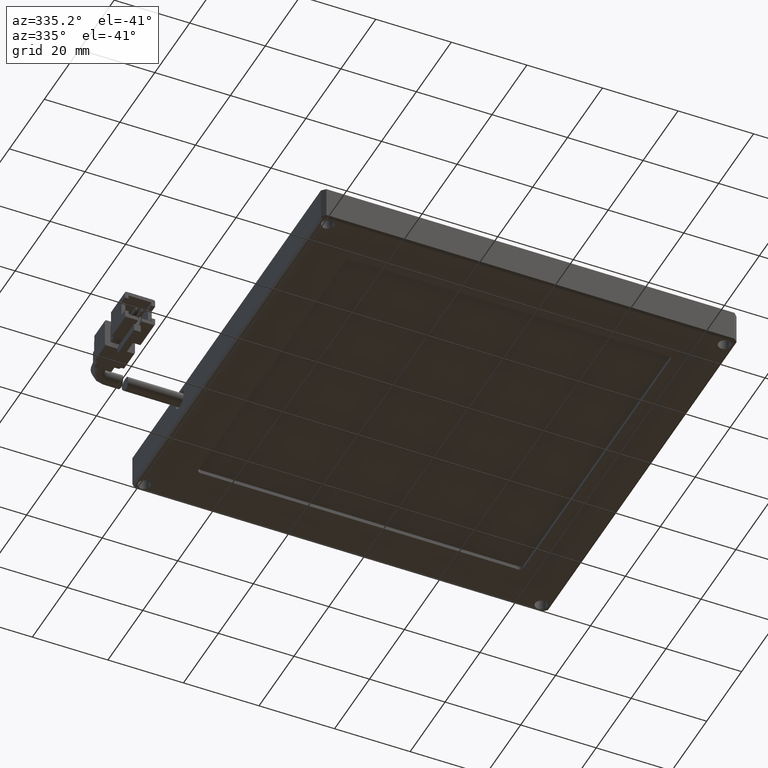
[diagram: clean part render]
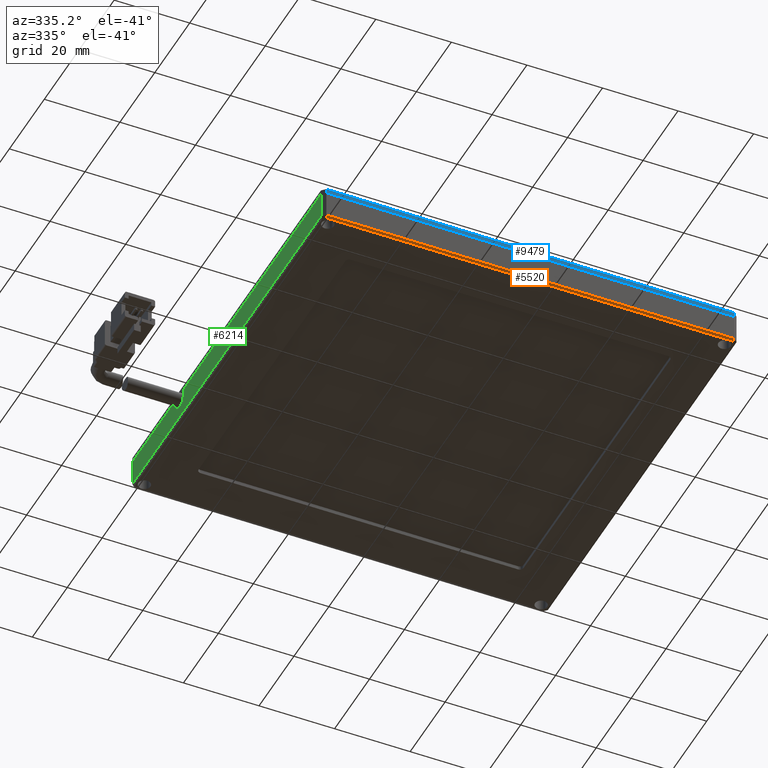
[diagram: same view with three faces highlighted in distinct colors, each labeled with its STEP entity id]
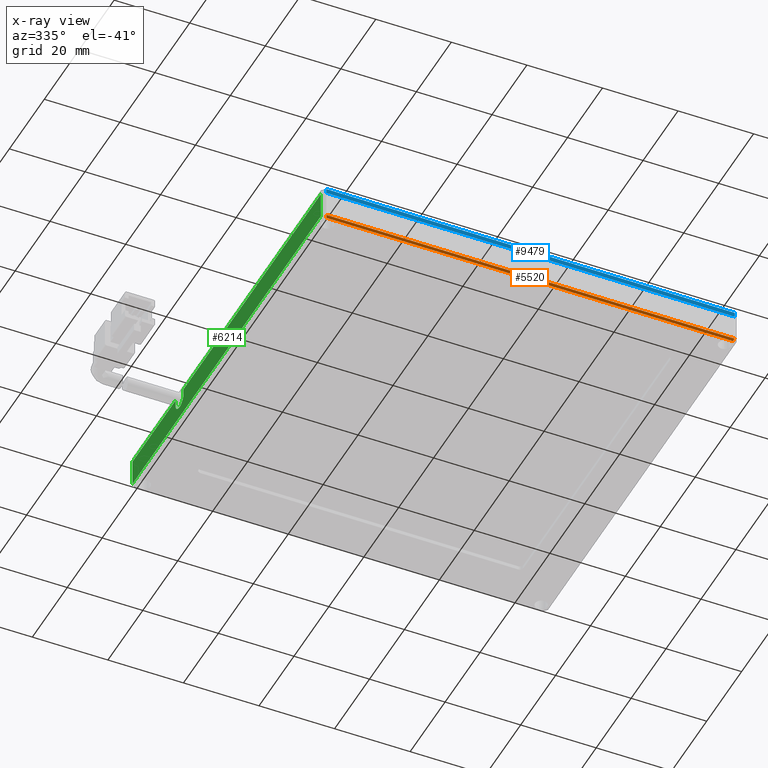
[diagram: x-ray of the same camera — body ghosted, the three highlighted faces saturated]
A machine part, auxiliary view with three faces highlighted in distinct colors.
The next image is the same camera in x-ray (body ghosted, the three faces saturated) — at least one of them is partly hidden behind the body in this view.
Their STEP definitions:

[orange] entity #5520 — the highlighted planar face has unit normal (0, -0.7071, -0.7071).
#290 = CARTESIAN_POINT ( 'NONE',  ( 48.85490645284423300, -46.59984726995021700, -7.000000000024218000 ) ) ;
#373 = VECTOR ( 'NONE', #17032, 1000.000000000000000 ) ;
#697 = EDGE_CURVE ( 'NONE', #2095, #1726, #14205, .T. ) ;
#1726 = VERTEX_POINT ( 'NONE', #11872 ) ;
#1876 = AXIS2_PLACEMENT_3D ( 'NONE', #2997, #12659, #4407 ) ;
#1892 = CARTESIAN_POINT ( 'NONE',  ( -59.14509354715928400, -46.59984726995006100, -7.000000000024730400 ) ) ;
#2067 = EDGE_CURVE ( 'NONE', #8291, #2095, #8245, .T. ) ;
#2095 = VERTEX_POINT ( 'NONE', #1892 ) ;
#2493 = FACE_OUTER_BOUND ( 'NONE', #11384, .T. ) ;
#2997 = CARTESIAN_POINT ( 'NONE',  ( -61.30509354716000600, -46.73213862594999300, -6.867708644026999200 ) ) ;
#4322 = VERTEX_POINT ( 'NONE', #6375 ) ;
#4407 = DIRECTION ( 'NONE',  ( 0.0000000000000000000, 0.7071067811897842100, -0.7071067811833107200 ) ) ;
#4466 = CARTESIAN_POINT ( 'NONE',  ( 48.64779967164000100, -46.09984726994781600, -7.500000000023391100 ) ) ;
#5191 = VECTOR ( 'NONE', #14564, 1000.000000000000000 ) ;
#5520 = ADVANCED_FACE ( 'NONE', ( #2493 ), #12605, .T. ) ;
#5591 = EDGE_CURVE ( 'NONE', #4322, #8291, #16931, .T. ) ;
#6375 = CARTESIAN_POINT ( 'NONE',  ( 48.64779967164027900, -46.09984726994930800, -7.500000000023733900 ) ) ;
#7816 = ORIENTED_EDGE ( 'NONE', *, *, #2067, .T. ) ;
#8167 = CARTESIAN_POINT ( 'NONE',  ( -5.145093547159993900, -46.59984726994998300, -7.000000000023993300 ) ) ;
#8245 = LINE ( 'NONE', #8167, #373 ) ;
#8291 = VERTEX_POINT ( 'NONE', #290 ) ;
#8849 = LINE ( 'NONE', #10360, #5191 ) ;
#9539 = ORIENTED_EDGE ( 'NONE', *, *, #697, .T. ) ;
#10360 = CARTESIAN_POINT ( 'NONE',  ( -5.145093547159997400, -46.09984726994996200, -7.500000000023999500 ) ) ;
#10576 = VECTOR ( 'NONE', #15485, 1000.000000000000100 ) ;
#11384 = EDGE_LOOP ( 'NONE', ( #15411, #7816, #9539, #14760 ) ) ;
#11872 = CARTESIAN_POINT ( 'NONE',  ( -58.93798676597328500, -46.09984726994931500, -7.500000000023733000 ) ) ;
#12605 = PLANE ( 'NONE',  #1876 ) ;
#12659 = DIRECTION ( 'NONE',  ( 0.0000000000000000000, -0.7071067811833108300, -0.7071067811897843200 ) ) ;
#12719 = CARTESIAN_POINT ( 'NONE',  ( -59.14509354716000200, -46.59984726995216400, -7.000000000023615800 ) ) ;
#12837 = DIRECTION ( 'NONE',  ( 0.2810846377306096500, -0.6785983445456829100, 0.6785983445394708800 ) ) ;
#13717 = VECTOR ( 'NONE', #12837, 1000.000000000000100 ) ;
#14205 = LINE ( 'NONE', #12719, #10576 ) ;
#14564 = DIRECTION ( 'NONE',  ( -1.000000000000000000, 0.0000000000000000000, 0.0000000000000000000 ) ) ;
#14760 = ORIENTED_EDGE ( 'NONE', *, *, #15644, .F. ) ;
#15411 = ORIENTED_EDGE ( 'NONE', *, *, #5591, .T. ) ;
#15485 = DIRECTION ( 'NONE',  ( 0.2810846377143121900, 0.6785983445490576500, -0.6785983445428468400 ) ) ;
#15644 = EDGE_CURVE ( 'NONE', #4322, #1726, #8849, .T. ) ;
#16931 = LINE ( 'NONE', #4466, #13717 ) ;
#17032 = DIRECTION ( 'NONE',  ( -1.000000000000000000, 0.0000000000000000000, 0.0000000000000000000 ) ) ;

[blue] entity #9479 — the highlighted planar face has unit normal (0, 1, 0).
#72 = DIRECTION ( 'NONE',  ( 1.000000000000000000, 0.0000000000000000000, 0.0000000000000000000 ) ) ;
#98 = DIRECTION ( 'NONE',  ( -1.000000000000000000, 0.0000000000000000000, 0.0000000000000000000 ) ) ;
#366 = VECTOR ( 'NONE', #12667, 1000.000000000000000 ) ;
#939 = VERTEX_POINT ( 'NONE', #6665 ) ;
#1221 = AXIS2_PLACEMENT_3D ( 'NONE', #15378, #7169, #16749 ) ;
#2247 = CARTESIAN_POINT ( 'NONE',  ( 48.85490645284001900, -46.59984726994997600, 0.5999999999763499000 ) ) ;
#2354 = ORIENTED_EDGE ( 'NONE', *, *, #11447, .F. ) ;
#2599 = ORIENTED_EDGE ( 'NONE', *, *, #6590, .F. ) ;
#3004 = CARTESIAN_POINT ( 'NONE',  ( -59.14509354715298900, -46.59984726994807100, 0.5999999999763500100 ) ) ;
#4088 = EDGE_LOOP ( 'NONE', ( #12406, #2354, #2599, #5749 ) ) ;
#4974 = VECTOR ( 'NONE', #72, 1000.000000000000000 ) ;
#5749 = ORIENTED_EDGE ( 'NONE', *, *, #12269, .F. ) ;
#6590 = EDGE_CURVE ( 'NONE', #939, #13472, #7108, .T. ) ;
#6665 = CARTESIAN_POINT ( 'NONE',  ( 48.85490645284051700, -46.59984726994998300, 1.199999999976435200 ) ) ;
#7108 = LINE ( 'NONE', #2247, #14401 ) ;
#7169 = DIRECTION ( 'NONE',  ( 0.0000000000000000000, 1.000000000000000000, 0.0000000000000000000 ) ) ;
#7795 = LINE ( 'NONE', #3004, #366 ) ;
#8189 = VECTOR ( 'NONE', #98, 1000.000000000000000 ) ;
#8418 = CARTESIAN_POINT ( 'NONE',  ( -5.145093547159997400, -46.59984726994998300, 1.199999999976435200 ) ) ;
#8494 = PLANE ( 'NONE',  #1221 ) ;
#9479 = ADVANCED_FACE ( 'NONE', ( #15390 ), #8494, .F. ) ;
#11251 = CARTESIAN_POINT ( 'NONE',  ( -5.145093547159997400, -46.59984726994998300, -2.364688306277999100E-011 ) ) ;
#11447 = EDGE_CURVE ( 'NONE', #13472, #14224, #15028, .T. ) ;
#11943 = DIRECTION ( 'NONE',  ( -0.0000000000000000000, -0.0000000000000000000, -1.000000000000000000 ) ) ;
#12269 = EDGE_CURVE ( 'NONE', #16408, #939, #12290, .T. ) ;
#12290 = LINE ( 'NONE', #8418, #4974 ) ;
#12406 = ORIENTED_EDGE ( 'NONE', *, *, #15233, .T. ) ;
#12667 = DIRECTION ( 'NONE',  ( -0.0000000000000000000, -0.0000000000000000000, -1.000000000000000000 ) ) ;
#13449 = CARTESIAN_POINT ( 'NONE',  ( 48.85490645284001900, -46.59984726994997600, -2.364691016783323100E-011 ) ) ;
#13472 = VERTEX_POINT ( 'NONE', #13449 ) ;
#14224 = VERTEX_POINT ( 'NONE', #15415 ) ;
#14401 = VECTOR ( 'NONE', #11943, 1000.000000000000000 ) ;
#15028 = LINE ( 'NONE', #11251, #8189 ) ;
#15233 = EDGE_CURVE ( 'NONE', #16408, #14224, #7795, .T. ) ;
#15378 = CARTESIAN_POINT ( 'NONE',  ( -61.30509354716000600, -46.59984726994998300, -0.1867602486113000300 ) ) ;
#15390 = FACE_OUTER_BOUND ( 'NONE', #4088, .T. ) ;
#15415 = CARTESIAN_POINT ( 'NONE',  ( -59.14509354715650600, -46.59984726994950700, -2.364688306277945500E-011 ) ) ;
#16408 = VERTEX_POINT ( 'NONE', #16679 ) ;
#16679 = CARTESIAN_POINT ( 'NONE',  ( -59.14509354715204400, -46.59984726994902400, 1.199999999976369300 ) ) ;
#16749 = DIRECTION ( 'NONE',  ( 0.0000000000000000000, 0.0000000000000000000, 1.000000000000000000 ) ) ;

[green] entity #6214 — the highlighted planar face has unit normal (1, 0, 0).
#387 = CIRCLE ( 'NONE', #1207, 2.250000000000383700 ) ;
#603 = ORIENTED_EDGE ( 'NONE', *, *, #1792, .F. ) ;
#734 = LINE ( 'NONE', #14102, #8152 ) ;
#934 = CARTESIAN_POINT ( 'NONE',  ( -60.14509354715998100, 33.15015273004999600, -3.500000000023749400 ) ) ;
#951 = DIRECTION ( 'NONE',  ( 0.0000000000000000000, 1.000000000000000000, 0.0000000000000000000 ) ) ;
#977 = DIRECTION ( 'NONE',  ( 0.0000000000000000000, 1.000000000000000000, 0.0000000000000000000 ) ) ;
#1125 = ORIENTED_EDGE ( 'NONE', *, *, #9069, .F. ) ;
#1164 = LINE ( 'NONE', #9222, #8144 ) ;
#1207 = AXIS2_PLACEMENT_3D ( 'NONE', #10678, #2355, #12056 ) ;
#1208 = VECTOR ( 'NONE', #9271, 1000.000000000000000 ) ;
#1616 = CARTESIAN_POINT ( 'NONE',  ( -60.14509354715689700, -45.59984726994860400, -2.369249566501570800E-011 ) ) ;
#1792 = EDGE_CURVE ( 'NONE', #14907, #17854, #387, .T. ) ;
#2131 = LINE ( 'NONE', #7909, #15981 ) ;
#2164 = EDGE_CURVE ( 'NONE', #9333, #7448, #9715, .T. ) ;
#2355 = DIRECTION ( 'NONE',  ( -1.000000000000000000, 0.0000000000000000000, 0.0000000000000000000 ) ) ;
#2649 = EDGE_CURVE ( 'NONE', #17854, #17888, #15918, .T. ) ;
#3134 = LINE ( 'NONE', #15006, #10061 ) ;
#3800 = EDGE_LOOP ( 'NONE', ( #1125, #12130, #8724, #4445, #14761, #12318, #9154, #603 ) ) ;
#4063 = CARTESIAN_POINT ( 'NONE',  ( -60.14509354715977500, -45.59984726994603900, -7.000000000021207900 ) ) ;
#4445 = ORIENTED_EDGE ( 'NONE', *, *, #15012, .F. ) ;
#4542 = VERTEX_POINT ( 'NONE', #4063 ) ;
#6214 = ADVANCED_FACE ( 'NONE', ( #12287 ), #11887, .F. ) ;
#6531 = VERTEX_POINT ( 'NONE', #1616 ) ;
#6745 = CARTESIAN_POINT ( 'NONE',  ( -60.14509354715796300, 33.15015273004903000, -2.362791162088483700E-011 ) ) ;
#7448 = VERTEX_POINT ( 'NONE', #9574 ) ;
#7622 = AXIS2_PLACEMENT_3D ( 'NONE', #17530, #9313, #977 ) ;
#7648 = CARTESIAN_POINT ( 'NONE',  ( -60.14509354715998100, -45.59984726994998300, -3.500000000023749000 ) ) ;
#7909 = CARTESIAN_POINT ( 'NONE',  ( -60.14509354715999500, 8.400152730050004700, -7.000000000023993300 ) ) ;
#8144 = VECTOR ( 'NONE', #10591, 1000.000000000000000 ) ;
#8152 = VECTOR ( 'NONE', #8663, 1000.000000000000000 ) ;
#8663 = DIRECTION ( 'NONE',  ( 0.0000000000000000000, 0.0000000000000000000, 1.000000000000000000 ) ) ;
#8724 = ORIENTED_EDGE ( 'NONE', *, *, #13720, .F. ) ;
#9069 = EDGE_CURVE ( 'NONE', #9333, #14907, #1164, .T. ) ;
#9154 = ORIENTED_EDGE ( 'NONE', *, *, #2649, .F. ) ;
#9222 = CARTESIAN_POINT ( 'NONE',  ( -60.14509354715998100, 37.65015273004998200, -3.500000000023749400 ) ) ;
#9271 = DIRECTION ( 'NONE',  ( 0.0000000000000000000, 0.0000000000000000000, 1.000000000000000000 ) ) ;
#9313 = DIRECTION ( 'NONE',  ( 1.000000000000000000, 0.0000000000000000000, 0.0000000000000000000 ) ) ;
#9333 = VERTEX_POINT ( 'NONE', #13574 ) ;
#9574 = CARTESIAN_POINT ( 'NONE',  ( -60.14509354715683300, 62.40015273004868100, -2.369254987512433300E-011 ) ) ;
#9662 = LINE ( 'NONE', #7648, #16947 ) ;
#9715 = LINE ( 'NONE', #13004, #12915 ) ;
#10061 = VECTOR ( 'NONE', #16394, 1000.000000000000000 ) ;
#10591 = DIRECTION ( 'NONE',  ( -0.0000000000000000000, -0.0000000000000000000, -1.000000000000000000 ) ) ;
#10678 = CARTESIAN_POINT ( 'NONE',  ( -60.14509354715394800, 35.40015273004999600, -1.600000000024000000 ) ) ;
#11090 = VERTEX_POINT ( 'NONE', #14341 ) ;
#11714 = DIRECTION ( 'NONE',  ( 0.0000000000000000000, 1.000000000000000000, 0.0000000000000000000 ) ) ;
#11887 = PLANE ( 'NONE',  #7622 ) ;
#12056 = DIRECTION ( 'NONE',  ( 0.0000000000000000000, 0.0000000000000000000, 1.000000000000000000 ) ) ;
#12130 = ORIENTED_EDGE ( 'NONE', *, *, #2164, .T. ) ;
#12213 = CARTESIAN_POINT ( 'NONE',  ( -60.14509354715593000, 33.15015273004896600, -1.600000000023886100 ) ) ;
#12287 = FACE_OUTER_BOUND ( 'NONE', #3800, .T. ) ;
#12318 = ORIENTED_EDGE ( 'NONE', *, *, #16292, .T. ) ;
#12915 = VECTOR ( 'NONE', #11714, 1000.000000000000000 ) ;
#13004 = CARTESIAN_POINT ( 'NONE',  ( -60.14509354716000200, 8.400152730050001200, -2.364686224609999500E-011 ) ) ;
#13327 = EDGE_CURVE ( 'NONE', #6531, #4542, #9662, .T. ) ;
#13574 = CARTESIAN_POINT ( 'NONE',  ( -60.14509354715860900, 37.65015273005136700, -2.362796583099346100E-011 ) ) ;
#13720 = EDGE_CURVE ( 'NONE', #11090, #7448, #734, .T. ) ;
#14102 = CARTESIAN_POINT ( 'NONE',  ( -60.14509354715998800, 62.40015273005000300, -3.500000000023749400 ) ) ;
#14341 = CARTESIAN_POINT ( 'NONE',  ( -60.14509354715977500, 62.40015273004605200, -7.000000000021203500 ) ) ;
#14569 = CARTESIAN_POINT ( 'NONE',  ( -60.14509354715593000, 37.65015273005101900, -1.600000000023885900 ) ) ;
#14761 = ORIENTED_EDGE ( 'NONE', *, *, #13327, .F. ) ;
#14907 = VERTEX_POINT ( 'NONE', #14569 ) ;
#15006 = CARTESIAN_POINT ( 'NONE',  ( -60.14509354715998800, 8.400152730050001200, -2.364686224609999500E-011 ) ) ;
#15012 = EDGE_CURVE ( 'NONE', #4542, #11090, #2131, .T. ) ;
#15918 = LINE ( 'NONE', #934, #1208 ) ;
#15981 = VECTOR ( 'NONE', #951, 1000.000000000000000 ) ;
#16292 = EDGE_CURVE ( 'NONE', #6531, #17888, #3134, .T. ) ;
#16394 = DIRECTION ( 'NONE',  ( 0.0000000000000000000, 1.000000000000000000, 0.0000000000000000000 ) ) ;
#16947 = VECTOR ( 'NONE', #17251, 1000.000000000000000 ) ;
#17251 = DIRECTION ( 'NONE',  ( -0.0000000000000000000, -0.0000000000000000000, -1.000000000000000000 ) ) ;
#17530 = CARTESIAN_POINT ( 'NONE',  ( -60.14509354715998800, -47.75984726994998700, -7.187088229858998600 ) ) ;
#17854 = VERTEX_POINT ( 'NONE', #12213 ) ;
#17888 = VERTEX_POINT ( 'NONE', #6745 ) ;